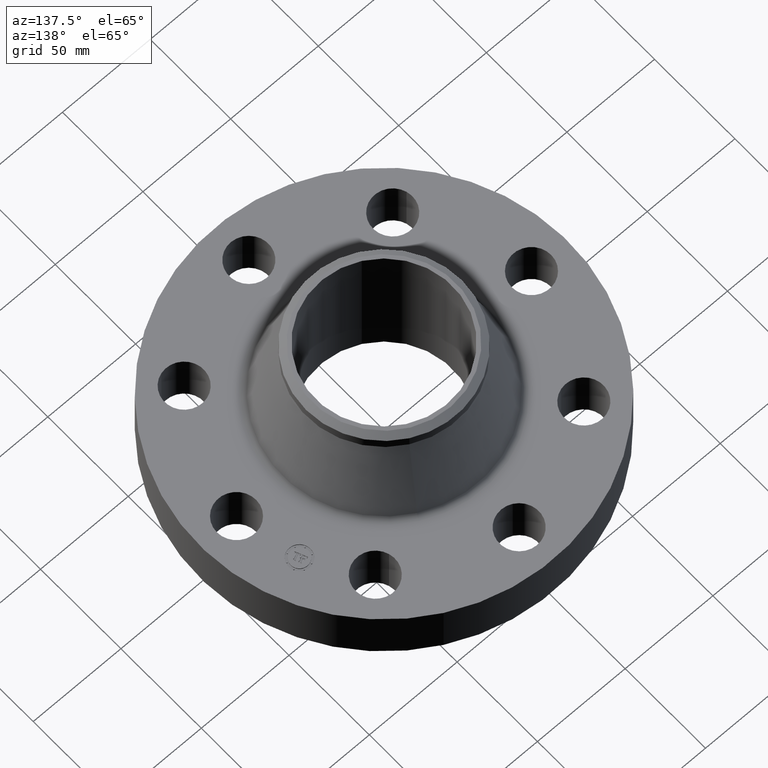
[diagram: clean part render]
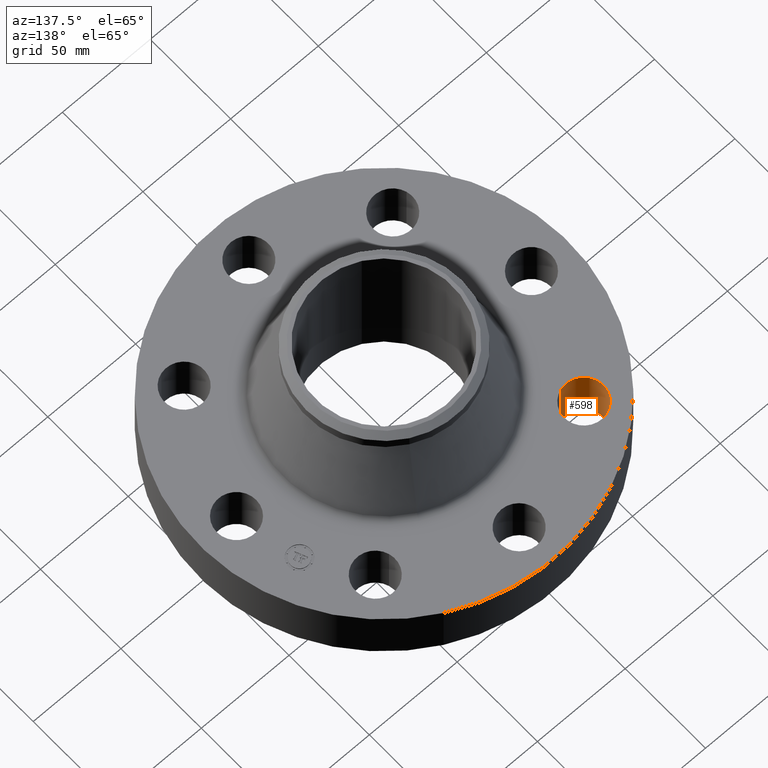
[diagram: same view with one face highlighted and labeled with its STEP entity id]
A machine part, auxiliary view. The second image highlights one B-rep face of the part: STEP entity #598.
In plain terms, the highlighted cylindrical surface (edge-blend (fillet) strip) has radius 11.176 mm, axis along (0, 0, -1).
Its self-contained STEP definition (entity closure, byte-faithful):
#515=AXIS2_PLACEMENT_3D('Circle Axis2P3D',#513,#514,$) ;
#571=AXIS2_PLACEMENT_3D('Cylinder Axis2P3D',#568,#569,#570) ;
#589=AXIS2_PLACEMENT_3D('Circle Axis2P3D',#587,#588,$) ;
#513=CARTESIAN_POINT('Axis2P3D Location',(-2.34052344574,2.34052344574,0.)) ;
#517=CARTESIAN_POINT('Vertex',(-2.21664605203,1.91832160854,0.)) ;
#519=CARTESIAN_POINT('Vertex',(-2.46440083944,2.76272528293,0.)) ;
#568=CARTESIAN_POINT('Axis2P3D Location',(-2.34052344574,2.34052344574,1.24606299213)) ;
#573=CARTESIAN_POINT('Line Origine',(-2.21664605203,1.91832160854,0.625000000003)) ;
#577=CARTESIAN_POINT('Vertex',(-2.21664605203,1.91832160854,1.25000000001)) ;
#580=CARTESIAN_POINT('Line Origine',(-2.46440083944,2.76272528293,0.625000000003)) ;
#584=CARTESIAN_POINT('Vertex',(-2.46440083944,2.76272528293,1.25000000001)) ;
#587=CARTESIAN_POINT('Axis2P3D Location',(-2.34052344574,2.34052344574,1.25000000001)) ;
#514=DIRECTION('Axis2P3D Direction',(0.,0.,-0.0393700787402)) ;
#569=DIRECTION('Axis2P3D Direction',(0.,0.,-0.0393700787402)) ;
#570=DIRECTION('Axis2P3D XDirection',(-0.0110842335096,0.0377775444876,0.)) ;
#574=DIRECTION('Vector Direction',(0.,0.,-0.0393700787402)) ;
#581=DIRECTION('Vector Direction',(0.,0.,-0.0393700787402)) ;
#588=DIRECTION('Axis2P3D Direction',(0.,0.,-0.0393700787402)) ;
#575=VECTOR('Line Direction',#574,0.0393700787402) ;
#582=VECTOR('Line Direction',#581,0.0393700787402) ;
#593=ORIENTED_EDGE('',*,*,#579,.F.) ;
#594=ORIENTED_EDGE('',*,*,#521,.T.) ;
#595=ORIENTED_EDGE('',*,*,#586,.T.) ;
#596=ORIENTED_EDGE('',*,*,#591,.F.) ;
#598=ADVANCED_FACE('PartBody',(#597),#572,.F.) ;
#516=CIRCLE('generated circle',#515,0.440000000002) ;
#590=CIRCLE('generated circle',#589,0.440000000002) ;
#572=CYLINDRICAL_SURFACE('generated cylinder',#571,0.440000000002) ;
#521=EDGE_CURVE('',#518,#520,#516,.T.) ;
#579=EDGE_CURVE('',#518,#578,#576,.F.) ;
#586=EDGE_CURVE('',#520,#585,#583,.F.) ;
#591=EDGE_CURVE('',#578,#585,#590,.T.) ;
#592=EDGE_LOOP('',(#593,#594,#595,#596)) ;
#597=FACE_OUTER_BOUND('',#592,.T.) ;
#576=LINE('Line',#573,#575) ;
#583=LINE('Line',#580,#582) ;
#518=VERTEX_POINT('',#517) ;
#520=VERTEX_POINT('',#519) ;
#578=VERTEX_POINT('',#577) ;
#585=VERTEX_POINT('',#584) ;